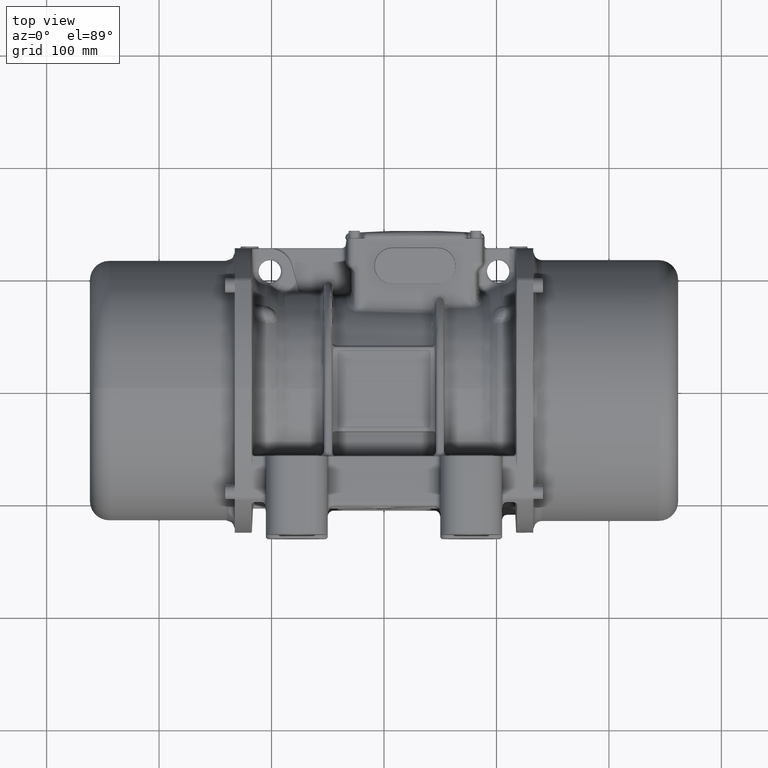
[diagram: clean part render]
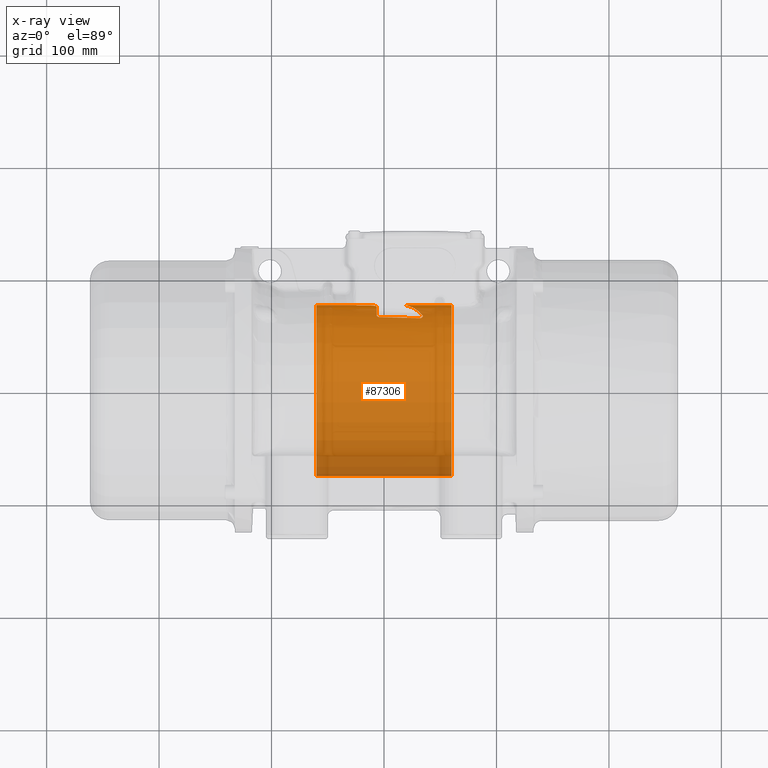
[diagram: x-ray — body ghosted, one internal face saturated and labeled with its STEP entity id]
A machine part, top view, then the same camera in x-ray: the body is ghosted and one INTERNAL B-rep face — a face not visible from any outside direction — is saturated and labeled: STEP entity #87306.
In plain terms, the highlighted cylindrical surface (partial cylindrical patch) has radius 76 mm, axis along (-1, 0, 0).
Its self-contained STEP definition (entity closure, byte-faithful):
#147 = EDGE_CURVE ( 'NONE', #22858, #3883, #53496, .T. ) ;
#538 = CARTESIAN_POINT ( 'NONE',  ( -60.00000000000000000, 0.0000000000000000000, 0.0000000000000000000 ) ) ;
#568 = CARTESIAN_POINT ( 'NONE',  ( 31.95590600269005000, 64.94853390481988200, -39.46755534408259800 ) ) ;
#1027 = CARTESIAN_POINT ( 'NONE',  ( 18.55439006606212600, 75.99493039864424300, -1.009898033206773100 ) ) ;
#1090 = CARTESIAN_POINT ( 'NONE',  ( 34.35335559265977400, 67.14420791550230700, -35.60490650604823100 ) ) ;
#1618 = VERTEX_POINT ( 'NONE', #109938 ) ;
#3883 = VERTEX_POINT ( 'NONE', #128116 ) ;
#5078 = CARTESIAN_POINT ( 'NONE',  ( 33.65553906475909700, 65.45655542917009500, -38.61915939703700200 ) ) ;
#6118 = DIRECTION ( 'NONE',  ( -1.000000000000000000, 4.565061778886339700E-017, 0.0000000000000000000 ) ) ;
#7228 = CARTESIAN_POINT ( 'NONE',  ( 20.00391407112393300, 64.94999205974787100, -39.46634419434173000 ) ) ;
#7387 = AXIS2_PLACEMENT_3D ( 'NONE', #538, #105613, #63424 ) ;
#7755 = CARTESIAN_POINT ( 'NONE',  ( -21.66056339325004400, 75.76278769950323500, -6.000000000000000900 ) ) ;
#7887 = VERTEX_POINT ( 'NONE', #44728 ) ;
#7927 = CARTESIAN_POINT ( 'NONE',  ( -14.50000000000000000, 75.76278769950479800, -5.999999999990230000 ) ) ;
#9275 = CARTESIAN_POINT ( 'NONE',  ( -9.190321662037531400, 75.57940803306003400, -7.993277913089380100 ) ) ;
#9678 = B_SPLINE_CURVE_WITH_KNOTS ( 'NONE', 3,
 ( #67983, #99659, #36360, #47823, #57462, #36820, #131230, #5078 ),
 .UNSPECIFIED., .F., .F.,
 ( 4, 2, 2, 4 ),
 ( 1.387778780781446000E-017, 0.001019754375161069000, 0.001529631562741601800, 0.002039508750322134900 ),
 .UNSPECIFIED. ) ;
#9887 = CARTESIAN_POINT ( 'NONE',  ( -5.082102062805956800, 66.12342684641032500, -37.46602554627958900 ) ) ;
#10762 = CARTESIAN_POINT ( 'NONE',  ( -24.45539954330350300, 75.92221700618696900, -3.459691379683778500 ) ) ;
#13308 = EDGE_CURVE ( 'NONE', #22858, #95564, #58458, .T. ) ;
#13905 = B_SPLINE_CURVE_WITH_KNOTS ( 'NONE', 3,
 ( #70339, #40109, #50650, #103406, #49758, #80934, #72139, #28663, #123972, #60287, #70794, #9275, #19906, #102057, #123084, #82289, #71697, #103847, #112553, #19451, #124430, #39235, #7927 ),
 .UNSPECIFIED., .F., .F.,
 ( 4, 2, 2, 2, 2, 2, 2, 2, 1, 2, 2, 4 ),
 ( 1.080838277467252600E-013, 0.001570267447510202900, 0.002355401171211262200, 0.003140534894912321700, 0.004710802342314442500, 0.006281069789716562300, 0.007851337237118684000, 0.008636470960819741700, 0.009421604684520799500, 0.01020673840822185700, 0.01099187213192291500, 0.01256213957932503100 ),
 .UNSPECIFIED. ) ;
#15030 = DIRECTION ( 'NONE',  ( -1.000000000000000000, 4.565061778886339700E-017, 0.0000000000000000000 ) ) ;
#16818 = LINE ( 'NONE', #46688, #121778 ) ;
#18019 = CARTESIAN_POINT ( 'NONE',  ( -24.46444119692580100, 75.93798905425629200, -3.069498069008635100 ) ) ;
#18029 = EDGE_CURVE ( 'NONE', #1618, #63703, #64690, .T. ) ;
#18255 = LINE ( 'NONE', #88793, #98695 ) ;
#18486 = CARTESIAN_POINT ( 'NONE',  ( 34.22924265401754700, 66.01221718490100400, -37.66148141538209900 ) ) ;
#19451 = CARTESIAN_POINT ( 'NONE',  ( -12.66458978520738800, 75.74597329465383700, -6.208886391125083100 ) ) ;
#19906 = CARTESIAN_POINT ( 'NONE',  ( -9.592714981238263100, 75.61357719449043200, -7.659930684130522100 ) ) ;
#19977 = B_SPLINE_CURVE_WITH_KNOTS ( 'NONE', 3,
 ( #28421, #110973, #70107, #7228, #47715, #80684 ),
 .UNSPECIFIED., .F., .F.,
 ( 4, 2, 4 ),
 ( 0.0000000000000000000, 0.01790475629254995000, 0.03580951258509990100 ),
 .UNSPECIFIED. ) ;
#20345 = CYLINDRICAL_SURFACE ( 'NONE', #47862, 76.00000000000000000 ) ;
#20524 = CARTESIAN_POINT ( 'NONE',  ( -5.661213056802307800, 66.38623476874303700, -36.99854833600763000 ) ) ;
#20950 = CARTESIAN_POINT ( 'NONE',  ( -23.69960370710481400, 75.83473080625766700, -5.011171049146762300 ) ) ;
#21416 = CARTESIAN_POINT ( 'NONE',  ( -6.196242390856607300, 66.78719516904003200, -36.27134060895825500 ) ) ;
#21999 = EDGE_CURVE ( 'NONE', #93776, #66284, #18255, .T. ) ;
#22203 = CARTESIAN_POINT ( 'NONE',  ( -24.49999999995806000, 76.00000000000008500, 4.723743100979010300E-015 ) ) ;
#22713 = CARTESIAN_POINT ( 'NONE',  ( 34.47134449353104200, 66.81180074527418400, -36.22486493466266200 ) ) ;
#22858 = VERTEX_POINT ( 'NONE', #122109 ) ;
#23107 = CARTESIAN_POINT ( 'NONE',  ( 18.50000000000000000, 76.00000000000000000, 9.307315666280043500E-015 ) ) ;
#23762 = CARTESIAN_POINT ( 'NONE',  ( 34.22924265401754700, 66.01221718490100400, -37.66148141538209900 ) ) ;
#26182 = CARTESIAN_POINT ( 'NONE',  ( 59.99999999999999300, -76.00000000000000000, 9.360286600299593100E-015 ) ) ;
#27596 = CARTESIAN_POINT ( 'NONE',  ( -22.77735574831168100, 75.78562306795548400, -5.704798135692071200 ) ) ;
#27825 = VERTEX_POINT ( 'NONE', #43571 ) ;
#28421 = CARTESIAN_POINT ( 'NONE',  ( -3.806930692986284700, 65.87885657193510300, -37.89427736181809800 ) ) ;
#28626 = ORIENTED_EDGE ( 'NONE', *, *, #72976, .F. ) ;
#28638 = CARTESIAN_POINT ( 'NONE',  ( 34.19321914199999700, 67.35378202191729700, -35.20607969298965400 ) ) ;
#28663 = CARTESIAN_POINT ( 'NONE',  ( -7.297735836114545000, 75.27573850074651300, -10.47862233439715300 ) ) ;
#31140 = VERTEX_POINT ( 'NONE', #51713 ) ;
#31405 = CARTESIAN_POINT ( 'NONE',  ( -24.49999999995801800, 76.00000000000000000, -1.019602914934355700 ) ) ;
#31505 = CARTESIAN_POINT ( 'NONE',  ( -23.27051774807894100, 75.80771897833805900, -5.403793098209505700 ) ) ;
#32792 = CARTESIAN_POINT ( 'NONE',  ( 34.45749207004244900, 66.46710449353030000, -36.85347939288286100 ) ) ;
#33468 = ORIENTED_EDGE ( 'NONE', *, *, #147, .T. ) ;
#33657 = CARTESIAN_POINT ( 'NONE',  ( 18.77483847833795800, 75.97509951578084000, -2.008380914928177100 ) ) ;
#35633 = CARTESIAN_POINT ( 'NONE',  ( -6.500000000000000000, 74.69939758793239500, -14.00000000000000000 ) ) ;
#36360 = CARTESIAN_POINT ( 'NONE',  ( 32.63210292376301400, 65.00737394777699800, -39.37095586247730200 ) ) ;
#36820 = CARTESIAN_POINT ( 'NONE',  ( 33.44798118973094600, 65.31816537349132500, -38.85294145247159700 ) ) ;
#37173 = ORIENTED_EDGE ( 'NONE', *, *, #87133, .T. ) ;
#37182 = CARTESIAN_POINT ( 'NONE',  ( 18.50000000000000000, 76.00000000000000000, 9.307315666280043500E-015 ) ) ;
#37230 = CARTESIAN_POINT ( 'NONE',  ( -21.85265013472390200, 75.76429056376902300, -5.981107993485298200 ) ) ;
#39235 = CARTESIAN_POINT ( 'NONE',  ( -13.96899301213243800, 75.76278769950316400, -6.000000000001557900 ) ) ;
#40109 = CARTESIAN_POINT ( 'NONE',  ( -6.499999999992975400, 74.79718466120208100, -13.47824032392331600 ) ) ;
#40275 = CARTESIAN_POINT ( 'NONE',  ( -3.806930692986284700, 65.87885657193510300, -37.89427736181809800 ) ) ;
#41954 = EDGE_CURVE ( 'NONE', #7887, #121404, #19977, .T. ) ;
#41960 = CARTESIAN_POINT ( 'NONE',  ( -24.48823344863211900, 75.97949169840677500, -2.042741489792782700 ) ) ;
#42149 = VERTEX_POINT ( 'NONE', #96199 ) ;
#42610 = EDGE_CURVE ( 'NONE', #56962, #48107, #110068, .T. ) ;
#42926 = CARTESIAN_POINT ( 'NONE',  ( 34.19321914199999700, 67.35378202191729700, -35.20607969298965400 ) ) ;
#43210 = DIRECTION ( 'NONE',  ( 1.000000000000000000, -4.565061778886339700E-017, -0.0000000000000000000 ) ) ;
#43571 = CARTESIAN_POINT ( 'NONE',  ( 33.65553906475909700, 65.45655542917009500, -38.61915939703700200 ) ) ;
#44611 = VERTEX_POINT ( 'NONE', #69591 ) ;
#44728 = CARTESIAN_POINT ( 'NONE',  ( -3.806930692986284700, 65.87885657193510300, -37.89427736181809800 ) ) ;
#46465 = EDGE_CURVE ( 'NONE', #7887, #1618, #131772, .T. ) ;
#46528 = ORIENTED_EDGE ( 'NONE', *, *, #89957, .T. ) ;
#46688 = CARTESIAN_POINT ( 'NONE',  ( 0.0000000000000000000, 75.76278769950631900, -5.999999999960900600 ) ) ;
#47516 = CARTESIAN_POINT ( 'NONE',  ( 19.15584549086225200, 75.94240117640470100, -2.958327832072070100 ) ) ;
#47715 = CARTESIAN_POINT ( 'NONE',  ( 25.97465545320899900, 64.89560143624751700, -39.55466222465263100 ) ) ;
#47823 = CARTESIAN_POINT ( 'NONE',  ( 33.06755972305095500, 65.14329916301876700, -39.14534815830930400 ) ) ;
#47862 = AXIS2_PLACEMENT_3D ( 'NONE', #106942, #76181, #95963 ) ;
#48105 = ORIENTED_EDGE ( 'NONE', *, *, #21999, .F. ) ;
#48107 = VERTEX_POINT ( 'NONE', #47516 ) ;
#49758 = CARTESIAN_POINT ( 'NONE',  ( -6.762291471396453700, 75.05479863197200500, -11.95161564642541100 ) ) ;
#50050 = EDGE_CURVE ( 'NONE', #93776, #57254, #104345, .T. ) ;
#50554 = VECTOR ( 'NONE', #15030, 1000.000000000000000 ) ;
#50650 = CARTESIAN_POINT ( 'NONE',  ( -6.550562505530772100, 74.88792529085355900, -12.96390584813346400 ) ) ;
#50672 = ORIENTED_EDGE ( 'NONE', *, *, #119071, .T. ) ;
#51707 = CARTESIAN_POINT ( 'NONE',  ( -5.528736305904654800, 66.31392169424823600, -37.12791202661328800 ) ) ;
#51713 = CARTESIAN_POINT ( 'NONE',  ( -14.50000000000000000, 75.76278769950479800, -5.999999999990230000 ) ) ;
#53496 = LINE ( 'NONE', #101912, #71495 ) ;
#56962 = VERTEX_POINT ( 'NONE', #37182 ) ;
#57254 = VERTEX_POINT ( 'NONE', #120888 ) ;
#57462 = CARTESIAN_POINT ( 'NONE',  ( 33.20370914911197200, 65.19779906424869900, -39.05458723947541000 ) ) ;
#58458 = B_SPLINE_CURVE_WITH_KNOTS ( 'NONE', 3,
 ( #22203, #31405, #41960, #64826 ),
 .UNSPECIFIED., .F., .F.,
 ( 4, 4 ),
 ( 0.02274101424832613800, 0.02576618511708430800 ),
 .UNSPECIFIED. ) ;
#58754 = CARTESIAN_POINT ( 'NONE',  ( -22.23063195222334800, 75.77009610493736600, -5.907107050791030800 ) ) ;
#59646 = CARTESIAN_POINT ( 'NONE',  ( -59.99999999999999300, -76.00000000000000000, 0.0000000000000000000 ) ) ;
#59849 = EDGE_CURVE ( 'NONE', #64193, #27825, #66352, .T. ) ;
#60287 = CARTESIAN_POINT ( 'NONE',  ( -8.117172765290021600, 75.44857651337605400, -9.149030623839189900 ) ) ;
#63424 = DIRECTION ( 'NONE',  ( -9.130123557772668300E-017, 1.000000000000000000, 0.0000000000000000000 ) ) ;
#63703 = VERTEX_POINT ( 'NONE', #35633 ) ;
#64193 = VERTEX_POINT ( 'NONE', #18486 ) ;
#64378 = CARTESIAN_POINT ( 'NONE',  ( 18.49999999999999600, 75.99999999999998600, -0.5068191776709412000 ) ) ;
#64441 = CARTESIAN_POINT ( 'NONE',  ( 34.44641793950998500, 66.92517331776872400, -36.01493024137698000 ) ) ;
#64690 = CIRCLE ( 'NONE', #136057, 76.00000000000000000 ) ;
#64826 = CARTESIAN_POINT ( 'NONE',  ( -24.46444119692580100, 75.93798905425629200, -3.069498069008635100 ) ) ;
#64851 = DIRECTION ( 'NONE',  ( 1.000000000000000000, -4.565061778886339700E-017, -0.0000000000000000000 ) ) ;
#64886 = CARTESIAN_POINT ( 'NONE',  ( 34.37625536377181100, 66.23855672176688400, -37.26269617905806100 ) ) ;
#66284 = VERTEX_POINT ( 'NONE', #59646 ) ;
#66352 = B_SPLINE_CURVE_WITH_KNOTS ( 'NONE', 3,
 ( #23762, #119065, #117716, #129605 ),
 .UNSPECIFIED., .F., .F.,
 ( 4, 4 ),
 ( 2.860979249076399600E-017, 0.001247014095434845900 ),
 .UNSPECIFIED. ) ;
#66709 = CARTESIAN_POINT ( 'NONE',  ( 34.22924265401754700, 66.01221718490100400, -37.66148141538209900 ) ) ;
#67983 = CARTESIAN_POINT ( 'NONE',  ( 31.95590600269005000, 64.94853390481988200, -39.46755534408259800 ) ) ;
#69591 = CARTESIAN_POINT ( 'NONE',  ( -21.46524630200000100, 75.76278769950479800, -5.999999999980449400 ) ) ;
#70107 = CARTESIAN_POINT ( 'NONE',  ( 8.083134052664828300, 65.26595119115911800, -38.94161537148662000 ) ) ;
#70339 = CARTESIAN_POINT ( 'NONE',  ( -6.500000000000000000, 74.69939758793239500, -14.00000000000000000 ) ) ;
#70794 = CARTESIAN_POINT ( 'NONE',  ( -8.453646712681816700, 75.49722197823550100, -8.735495635205122500 ) ) ;
#71495 = VECTOR ( 'NONE', #135702, 1000.000000000000000 ) ;
#71679 = CARTESIAN_POINT ( 'NONE',  ( 24.42480627067246600, 75.50223730523966000, -14.25765068795088600 ) ) ;
#71697 = CARTESIAN_POINT ( 'NONE',  ( -11.41251328266281800, 75.71256328870407500, -6.605922568660509400 ) ) ;
#72139 = CARTESIAN_POINT ( 'NONE',  ( -7.000240153044219800, 75.17011805847430100, -11.20325552194366000 ) ) ;
#72290 = CARTESIAN_POINT ( 'NONE',  ( -4.746455678574711200, 66.02144339571897500, -37.64544673785835700 ) ) ;
#72976 = EDGE_CURVE ( 'NONE', #121404, #27825, #9678, .T. ) ;
#73608 = EDGE_CURVE ( 'NONE', #63703, #31140, #13905, .T. ) ;
#74423 = CARTESIAN_POINT ( 'NONE',  ( 18.93921027561887300, 75.96049867207602800, -2.493752114116368100 ) ) ;
#74873 = CARTESIAN_POINT ( 'NONE',  ( 19.15584549086225200, 75.94240117640470100, -2.958327832072070100 ) ) ;
#76181 = DIRECTION ( 'NONE',  ( -1.000000000000000000, 4.565061778886339700E-017, 0.0000000000000000000 ) ) ;
#77691 = FACE_OUTER_BOUND ( 'NONE', #90859, .T. ) ;
#79340 = AXIS2_PLACEMENT_3D ( 'NONE', #116513, #43210, #94593 ) ;
#80684 = CARTESIAN_POINT ( 'NONE',  ( 31.95590600269005000, 64.94853390481988200, -39.46755534408259800 ) ) ;
#80934 = CARTESIAN_POINT ( 'NONE',  ( -6.912127553691595600, 75.13265041525302500, -11.45201972689210900 ) ) ;
#82289 = CARTESIAN_POINT ( 'NONE',  ( -10.93947350851021800, 75.69247315708979300, -6.831191596123355600 ) ) ;
#82449 = CARTESIAN_POINT ( 'NONE',  ( -4.565798067802003100, 65.97826572723545300, -37.72098540125557500 ) ) ;
#83333 = CARTESIAN_POINT ( 'NONE',  ( -22.94772519366191700, 75.79234995224645400, -5.615240445710501400 ) ) ;
#83355 = CARTESIAN_POINT ( 'NONE',  ( -6.014512637415103700, 66.61512370644524600, -36.58584803643679400 ) ) ;
#85039 = DIRECTION ( 'NONE',  ( -4.565061778886334200E-017, -1.000000000000000000, 8.881784197001252300E-016 ) ) ;
#86401 = B_SPLINE_CURVE_WITH_KNOTS ( 'NONE', 3,
 ( #101887, #7755, #37230, #58754, #132088, #27596, #83333, #31505, #104880, #20950, #103967, #115382, #125916, #125457, #10762, #94342 ),
 .UNSPECIFIED., .F., .F.,
 ( 4, 2, 2, 2, 2, 2, 2, 4 ),
 ( 3.294331799844929800E-015, 0.0005776202958310810300, 0.001155240591658867600, 0.001732860887486654200, 0.002310481183314441000, 0.002888101479142227300, 0.003465721774970014100, 0.004620962366625583400 ),
 .UNSPECIFIED. ) ;
#86445 = CARTESIAN_POINT ( 'NONE',  ( 34.28525764587809700, 67.25061219949833500, -35.40345690134707000 ) ) ;
#87133 = EDGE_CURVE ( 'NONE', #3883, #66284, #97468, .T. ) ;
#87306 = ADVANCED_FACE ( 'NONE', ( #77691 ), #20345, .F. ) ;
#88793 = CARTESIAN_POINT ( 'NONE',  ( 59.99999999999999300, -76.00000000000000000, 0.0000000000000000000 ) ) ;
#89957 = EDGE_CURVE ( 'NONE', #31140, #44611, #16818, .T. ) ;
#90859 = EDGE_LOOP ( 'NONE', ( #126025, #111457, #124249, #110728, #126331, #113723, #28626, #101687, #118041, #102307, #110832, #46528, #50672, #128438, #33468, #37173, #48105 ) ) ;
#93776 = VERTEX_POINT ( 'NONE', #26182 ) ;
#94342 = CARTESIAN_POINT ( 'NONE',  ( -24.46444119692580100, 75.93798905425629200, -3.069498069008635100 ) ) ;
#94364 = CARTESIAN_POINT ( 'NONE',  ( -6.437482184480504800, 67.14057735038153400, -35.61295355872550800 ) ) ;
#94593 = DIRECTION ( 'NONE',  ( -9.130123557772668300E-017, -1.000000000000000000, 0.0000000000000000000 ) ) ;
#95564 = VERTEX_POINT ( 'NONE', #18019 ) ;
#95963 = DIRECTION ( 'NONE',  ( -9.130123557772668300E-017, -1.000000000000000000, 0.0000000000000000000 ) ) ;
#96199 = CARTESIAN_POINT ( 'NONE',  ( 34.19321914199999700, 67.35378202191729700, -35.20607969298965400 ) ) ;
#97468 = CIRCLE ( 'NONE', #7387, 76.00000000000000000 ) ;
#98695 = VECTOR ( 'NONE', #6118, 1000.000000000000000 ) ;
#99659 = CARTESIAN_POINT ( 'NONE',  ( 32.29914829078890600, 64.95157166805782400, -39.46255658296227200 ) ) ;
#101006 =( BOUNDED_CURVE ( )  B_SPLINE_CURVE ( 3, ( #134493, #71679, #124407, #28638 ),
 .UNSPECIFIED., .F., .F. ) 
 B_SPLINE_CURVE_WITH_KNOTS ( ( 4, 4 ),
 ( 1.609731529563427100, 2.052441590786688900 ),
 .UNSPECIFIED. ) 
 CURVE ( )  GEOMETRIC_REPRESENTATION_ITEM ( )  RATIONAL_B_SPLINE_CURVE ( ( 1.000000000000000000, 0.9837338971167055600, 0.9837338971167055600, 1.000000000000000000 ) ) 
 REPRESENTATION_ITEM ( '' )  );
#101687 = ORIENTED_EDGE ( 'NONE', *, *, #41954, .F. ) ;
#101887 = CARTESIAN_POINT ( 'NONE',  ( -21.46524630200000100, 75.76278769950479800, -5.999999999980449400 ) ) ;
#101912 = CARTESIAN_POINT ( 'NONE',  ( 60.00000000000000700, 76.00000000000000000, 9.307315673519883900E-015 ) ) ;
#102057 = CARTESIAN_POINT ( 'NONE',  ( -10.24853179736637000, 75.65660106095603500, -7.218075537257625700 ) ) ;
#102307 = ORIENTED_EDGE ( 'NONE', *, *, #18029, .T. ) ;
#103406 = CARTESIAN_POINT ( 'NONE',  ( -6.700084566164524500, 75.01429985911077800, -12.20331385113687300 ) ) ;
#103847 = CARTESIAN_POINT ( 'NONE',  ( -11.90503560590087200, 75.72771473746111300, -6.428000198984833000 ) ) ;
#103967 = CARTESIAN_POINT ( 'NONE',  ( -23.82372023046905700, 75.84434915377890700, -4.864178438128028900 ) ) ;
#103986 = CARTESIAN_POINT ( 'NONE',  ( -6.500000000000000000, 67.50770712806829000, -34.91001974091330600 ) ) ;
#104281 = EDGE_CURVE ( 'NONE', #57254, #56962, #108041, .T. ) ;
#104345 = CIRCLE ( 'NONE', #79340, 76.00000000000000000 ) ;
#104880 = CARTESIAN_POINT ( 'NONE',  ( -23.42382230507503500, 75.81644598781352300, -5.280601245912018600 ) ) ;
#105613 = DIRECTION ( 'NONE',  ( -1.000000000000000000, -4.565061778886339700E-017, -0.0000000000000000000 ) ) ;
#106280 = EDGE_CURVE ( 'NONE', #48107, #42149, #101006, .T. ) ;
#106942 = CARTESIAN_POINT ( 'NONE',  ( 60.00000000000000000, 0.0000000000000000000, 0.0000000000000000000 ) ) ;
#107937 = CARTESIAN_POINT ( 'NONE',  ( -6.500000000000000000, 3.035766082959415200E-015, 0.0000000000000000000 ) ) ;
#108041 = LINE ( 'NONE', #131035, #50554 ) ;
#109938 = CARTESIAN_POINT ( 'NONE',  ( -6.500000000000000000, 67.50770712806829000, -34.91001974091330600 ) ) ;
#110068 = B_SPLINE_CURVE_WITH_KNOTS ( 'NONE', 3,
 ( #23107, #64378, #1027, #33657, #74423, #74873 ),
 .UNSPECIFIED., .F., .F.,
 ( 4, 2, 4 ),
 ( 0.003038700690715825800, 0.004555654411798018600, 0.006072608132880210500 ),
 .UNSPECIFIED. ) ;
#110728 = ORIENTED_EDGE ( 'NONE', *, *, #106280, .T. ) ;
#110832 = ORIENTED_EDGE ( 'NONE', *, *, #73608, .T. ) ;
#110973 = CARTESIAN_POINT ( 'NONE',  ( 2.133093225944886900, 65.52744198980714400, -38.50520841698510600 ) ) ;
#111457 = ORIENTED_EDGE ( 'NONE', *, *, #104281, .T. ) ;
#112553 = CARTESIAN_POINT ( 'NONE',  ( -12.40741768608115700, 75.74062393421866100, -6.274061839964672600 ) ) ;
#113723 = ORIENTED_EDGE ( 'NONE', *, *, #59849, .T. ) ;
#114493 = CARTESIAN_POINT ( 'NONE',  ( -6.500000000000000900, 67.32533198469614900, -35.26269005899453600 ) ) ;
#114947 = CARTESIAN_POINT ( 'NONE',  ( -5.238266952210138600, 66.18219701727170400, -37.36221165688466800 ) ) ;
#115382 = CARTESIAN_POINT ( 'NONE',  ( -24.04397388337477900, 75.86413149536095100, -4.545226385215301900 ) ) ;
#115399 = CARTESIAN_POINT ( 'NONE',  ( -4.195798316223614300, 65.91316568077465400, -37.83462538408671300 ) ) ;
#116513 = CARTESIAN_POINT ( 'NONE',  ( 60.00000000000000000, 0.0000000000000000000, 0.0000000000000000000 ) ) ;
#117716 = CARTESIAN_POINT ( 'NONE',  ( 33.89349683691218500, 65.63179837861864000, -38.32213429806167700 ) ) ;
#118041 = ORIENTED_EDGE ( 'NONE', *, *, #46465, .T. ) ;
#119065 = CARTESIAN_POINT ( 'NONE',  ( 34.08243785383158600, 65.81791327043060800, -38.00205304681324500 ) ) ;
#119071 = EDGE_CURVE ( 'NONE', #44611, #95564, #86401, .T. ) ;
#119978 = DIRECTION ( 'NONE',  ( -1.000000000000000000, -0.0000000000000000000, -0.0000000000000000000 ) ) ;
#120888 = CARTESIAN_POINT ( 'NONE',  ( 60.00000000000000700, 76.00000000000000000, 0.0000000000000000000 ) ) ;
#121404 = VERTEX_POINT ( 'NONE', #568 ) ;
#121778 = VECTOR ( 'NONE', #119978, 1000.000000000000000 ) ;
#122109 = CARTESIAN_POINT ( 'NONE',  ( -24.49999999995806000, 76.00000000000008500, 4.723743100979010300E-015 ) ) ;
#123084 = CARTESIAN_POINT ( 'NONE',  ( -10.47634138069354700, 75.66955822193827400, -7.080510557608036500 ) ) ;
#123972 = CARTESIAN_POINT ( 'NONE',  ( -7.541016941790537100, 75.33792865133536100, -10.01942941374492500 ) ) ;
#124017 = EDGE_CURVE ( 'NONE', #42149, #64193, #125807, .T. ) ;
#124133 = CARTESIAN_POINT ( 'NONE',  ( -4.004686708285909400, 65.89055590980989100, -37.87393816932017600 ) ) ;
#124249 = ORIENTED_EDGE ( 'NONE', *, *, #42610, .T. ) ;
#124407 = CARTESIAN_POINT ( 'NONE',  ( 29.52014546590932700, 72.59202646479006700, -25.18464085452819400 ) ) ;
#124430 = CARTESIAN_POINT ( 'NONE',  ( -13.44377783769379400, 75.75869592326115800, -6.052351137871206700 ) ) ;
#125457 = CARTESIAN_POINT ( 'NONE',  ( -24.36925414151788200, 75.90347608205725300, -3.845394273323055900 ) ) ;
#125807 = B_SPLINE_CURVE_WITH_KNOTS ( 'NONE', 3,
 ( #42926, #86445, #1090, #64441, #22713, #127691, #32792, #64886, #129489, #66709 ),
 .UNSPECIFIED., .F., .F.,
 ( 4, 2, 2, 2, 4 ),
 ( 4.048516840305109800E-014, 0.0007110673893197989600, 0.001422134778599112700, 0.002133202167878426300, 0.002844269557157740000 ),
 .UNSPECIFIED. ) ;
#125916 = CARTESIAN_POINT ( 'NONE',  ( -24.13884344647103900, 75.87421271775760100, -4.374360418924469600 ) ) ;
#126025 = ORIENTED_EDGE ( 'NONE', *, *, #50050, .T. ) ;
#126331 = ORIENTED_EDGE ( 'NONE', *, *, #124017, .T. ) ;
#127691 = CARTESIAN_POINT ( 'NONE',  ( 34.47675234077656400, 66.58176555668748600, -36.64595548918158800 ) ) ;
#128116 = CARTESIAN_POINT ( 'NONE',  ( -60.00000000000000700, 76.00000000000000000, 9.360286600299591500E-015 ) ) ;
#128438 = ORIENTED_EDGE ( 'NONE', *, *, #13308, .F. ) ;
#129489 = CARTESIAN_POINT ( 'NONE',  ( 34.31367292758168500, 66.12396363177531100, -37.46561469752084900 ) ) ;
#129605 = CARTESIAN_POINT ( 'NONE',  ( 33.65553906475909700, 65.45655542917009500, -38.61915939703700200 ) ) ;
#131035 = CARTESIAN_POINT ( 'NONE',  ( 60.00000000000000700, 76.00000000000000000, 9.307315673519883900E-015 ) ) ;
#131230 = CARTESIAN_POINT ( 'NONE',  ( 33.55840560035861800, 65.38496269948883800, -38.74050209410717800 ) ) ;
#131772 = B_SPLINE_CURVE_WITH_KNOTS ( 'NONE', 3,
 ( #40275, #124133, #115399, #82449, #72290, #9887, #114947, #51707, #20524, #83355, #21416, #94364, #114493, #103986 ),
 .UNSPECIFIED., .F., .F.,
 ( 4, 2, 2, 2, 2, 2, 4 ),
 ( 3.803453669572252800E-014, 0.0005881333448011642000, 0.001176266689564293700, 0.001764400034327423700, 0.002352533379090553200, 0.003528800068616814000, 0.004705066758143075200 ),
 .UNSPECIFIED. ) ;
#132088 = CARTESIAN_POINT ( 'NONE',  ( -22.41841444207495800, 75.77446452281621700, -5.851146199480257200 ) ) ;
#134493 = CARTESIAN_POINT ( 'NONE',  ( 19.15584549086225200, 75.94240117640470100, -2.958327832072070100 ) ) ;
#135702 = DIRECTION ( 'NONE',  ( -1.000000000000000000, 4.565061778886339700E-017, 0.0000000000000000000 ) ) ;
#136057 = AXIS2_PLACEMENT_3D ( 'NONE', #107937, #64851, #85039 ) ;